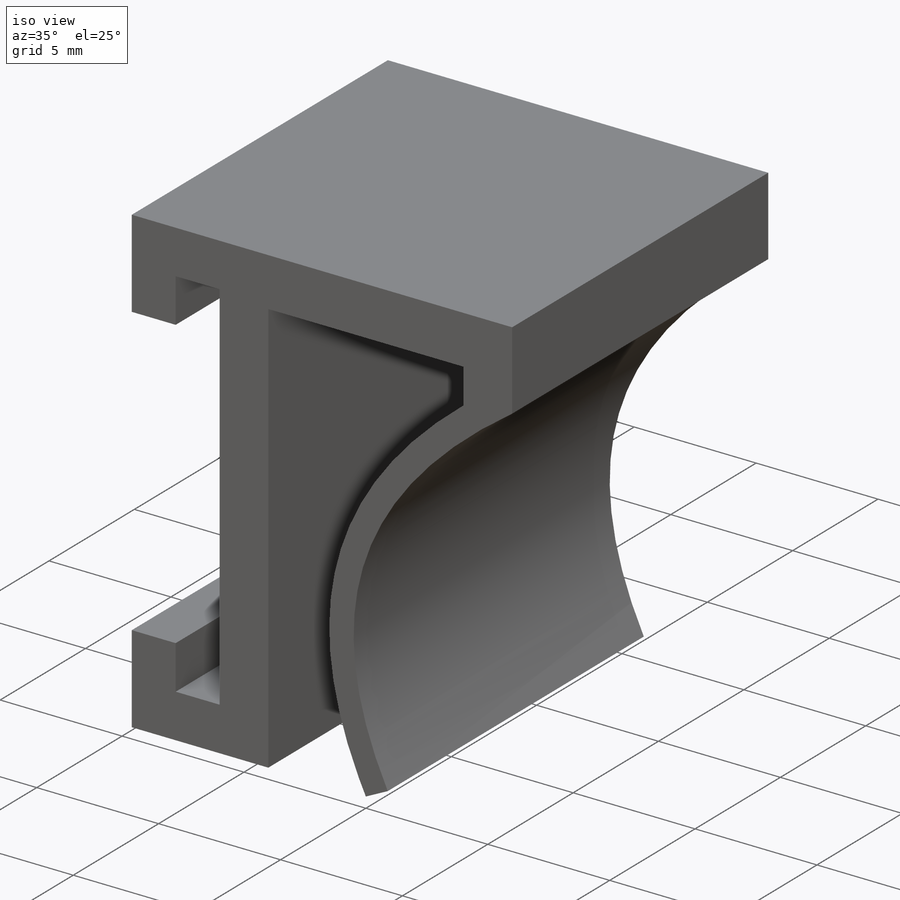
[diagram: iso view]
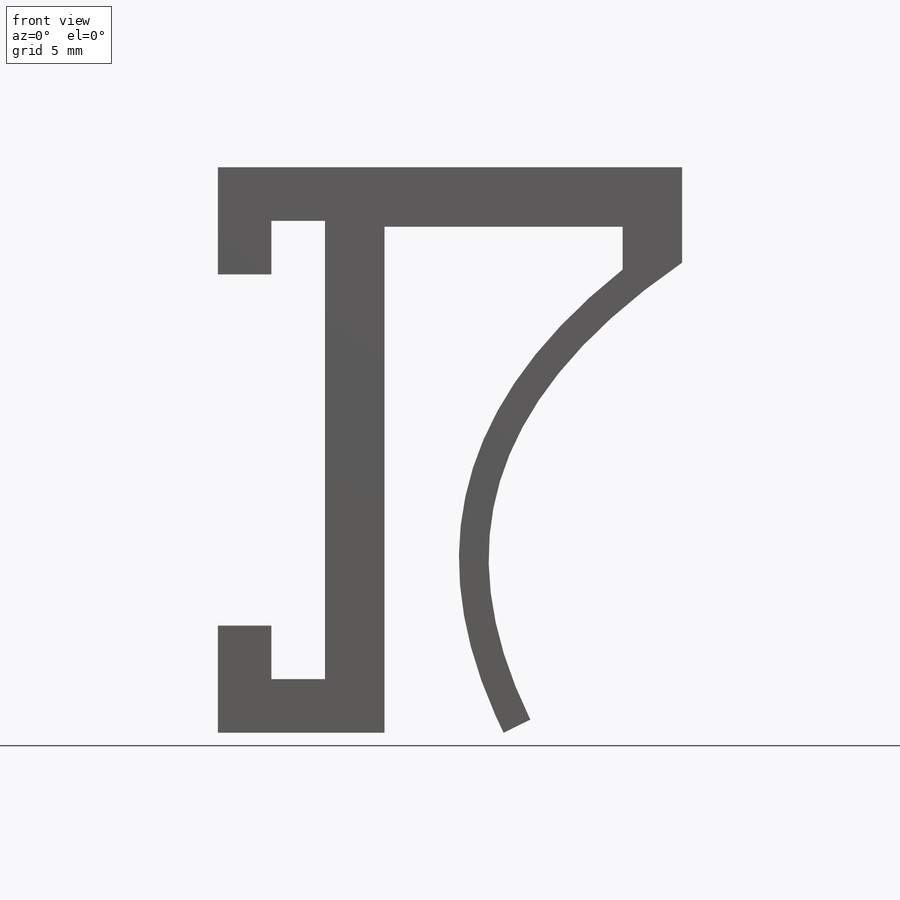
[diagram: front view]
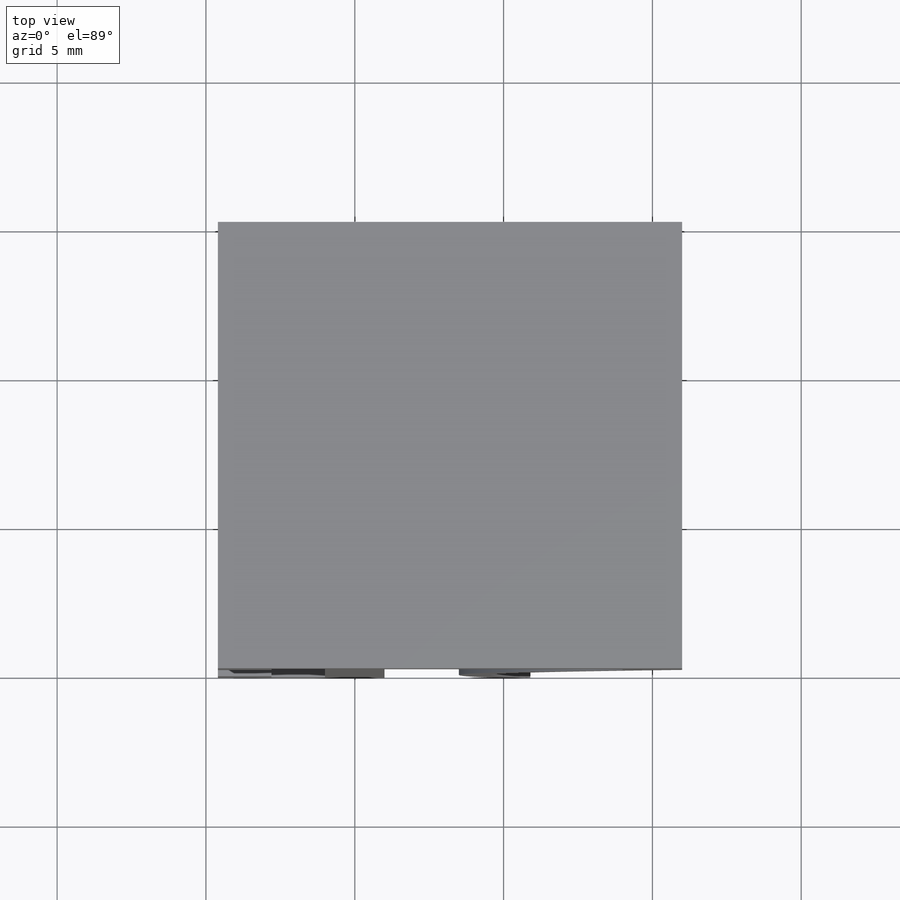
[diagram: top view]
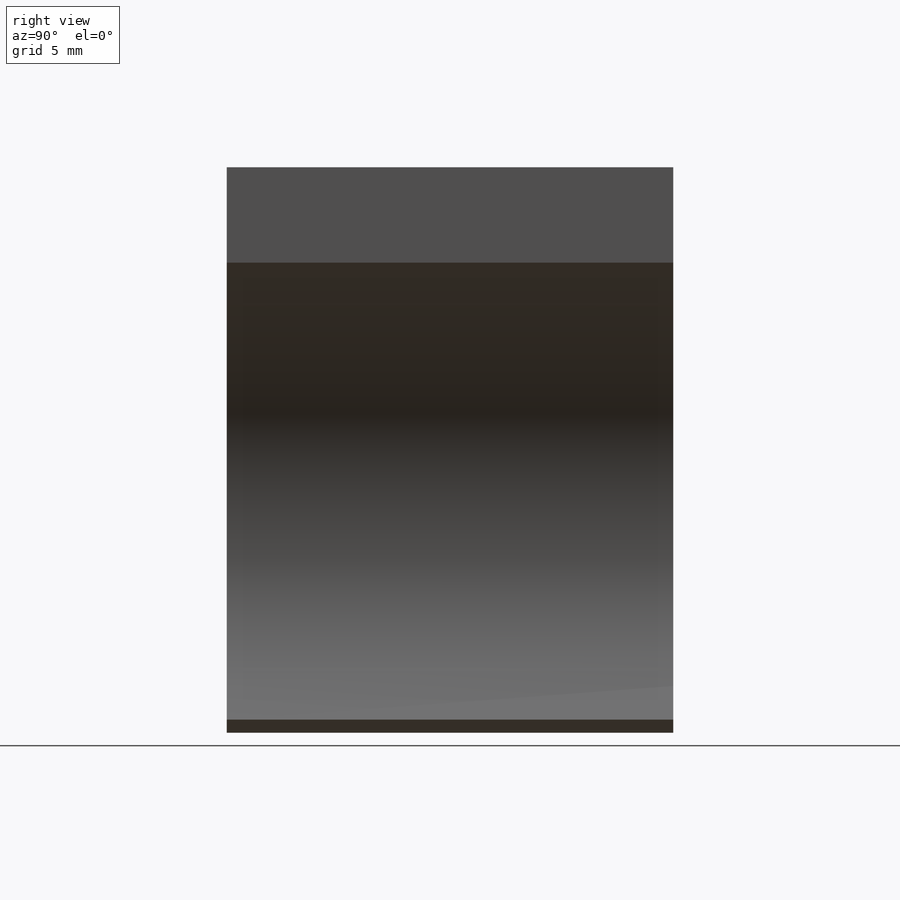
[diagram: right view]
SOLIDWORKS PART (.sldprt)
format: sldprt  version: not decoded by parser v0  size: 236,032 bytes
history: native  units: mm
features: sketch x4, extrude x4, plane x3, material x1 (+10 scaffold rows collapsed)
feature tree (22):
  scaffold x10  (default folders/planes/origin — collapsed)
  material  "ABS"
  plane  "Ebene vorne"
  plane  "Ebene oben"
  plane  "Ebene rechts"
  sketch  "Skizze1"  dims[c1.D9=6.0mm c1.D10=3.0mm c1.D8=3.8mm c1.D1=19.0mm c1.D2=2.0mm c1.D3=10.0mm c1.D4=2.0mm c1.D5=5.0mm c1.D6=4.0mm c2.D8=3.0mm c2.D11=10.0mm c2.D9=10.0mm c3.D8=2.0mm c3.D7=1.0mm]
  extrude  "Aufsatz-Linear austragen1"  Depth=15mm
  sketch  "Skizze8"  dims[D1=1.8mm D2=1.8mm]
  extrude  "Aufsatz-Linear austragen2"  Depth=3.6mm
  sketch  "Skizze9"
  extrude  "Aufsatz-Linear austragen3"  Depth=1.8mm
  sketch  "Skizze10"  dims[D1=1.8mm]
  extrude  "Aufsatz-Linear austragen4"  Depth=1.8mm
decode coverage: 7 of 8 modeling features carry decoded parameters
note: suppression state not decoded; provenance and decode notes live in map.json
